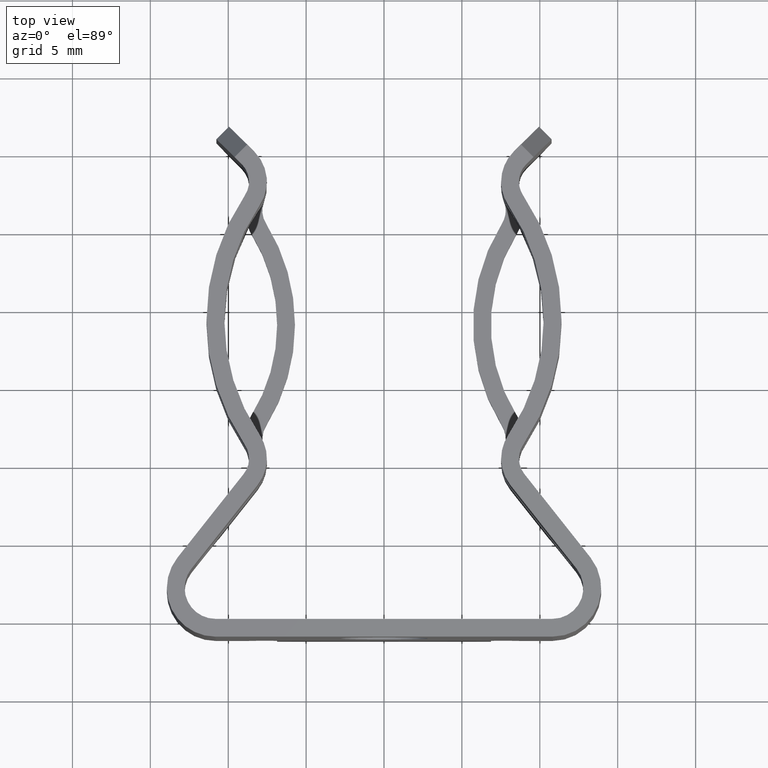
[diagram: clean part render]
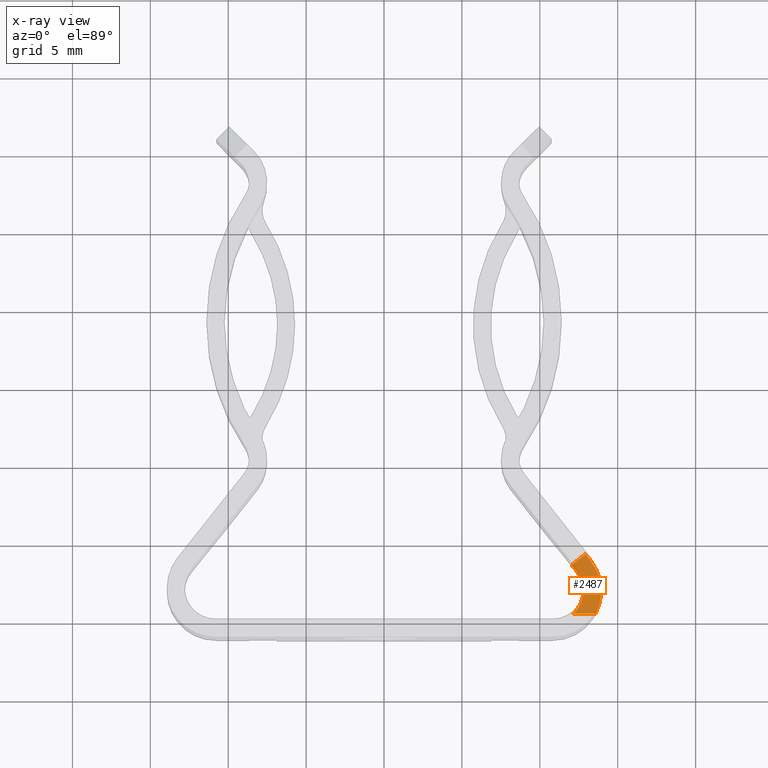
[diagram: x-ray — body ghosted, one internal face saturated and labeled with its STEP entity id]
A machine part, top view, then the same camera in x-ray: the body is ghosted and one INTERNAL B-rep face — a face not visible from any outside direction — is saturated and labeled: STEP entity #2487.
In plain terms, the highlighted planar face has unit normal (0, 0, -1).
Its self-contained STEP definition (entity closure, byte-faithful):
#44 = EDGE_CURVE ( 'NONE', #4025, #3288, #577, .T. ) ;
#83 = DIRECTION ( 'NONE',  ( 0.6204753079448082100, -0.7842259828842673700, -0.0000000000000000000 ) ) ;
#104 = EDGE_LOOP ( 'NONE', ( #1846, #1913, #1962, #2069, #2225, #2310 ) ) ;
#161 = EDGE_CURVE ( 'NONE', #3288, #3585, #166, .T. ) ;
#166 = LINE ( 'NONE', #1588, #222 ) ;
#222 = VECTOR ( 'NONE', #3735, 39.37007874015748900 ) ;
#577 = CIRCLE ( 'NONE', #4249, 0.07799999999999994400 ) ;
#665 = DIRECTION ( 'NONE',  ( 0.0000000000000000000, 1.000000000000000000, 0.0000000000000000000 ) ) ;
#730 = LINE ( 'NONE', #996, #1907 ) ;
#760 = VERTEX_POINT ( 'NONE', #4052 ) ;
#806 = CARTESIAN_POINT ( 'NONE',  ( 0.4258192205926868400, 0.07799999999999997200, -0.3990000000000000200 ) ) ;
#866 = DIRECTION ( 'NONE',  ( 0.0000000000000000000, 1.288607544181256200E-016, -1.000000000000000000 ) ) ;
#996 = CARTESIAN_POINT ( 'NONE',  ( 0.5222790164874515600, 0.1543184628772113800, -0.3990000000000000200 ) ) ;
#1242 = AXIS2_PLACEMENT_3D ( 'NONE', #806, #866, #665 ) ;
#1285 = CARTESIAN_POINT ( 'NONE',  ( 0.5090806755638476200, 0.1709999999999999000, -0.3990000000000000200 ) ) ;
#1538 = VERTEX_POINT ( 'NONE', #4269 ) ;
#1588 = CARTESIAN_POINT ( 'NONE',  ( 0.4869888472576595600, 0.1263970740196950200, -0.3990000000000000200 ) ) ;
#1618 = CARTESIAN_POINT ( 'NONE',  ( 0.4737905063340555600, 0.1430786111424835500, -0.3990000000000000200 ) ) ;
#1791 = VECTOR ( 'NONE', #4139, 39.37007874015748900 ) ;
#1830 = CIRCLE ( 'NONE', #1242, 0.1229999999999998700 ) ;
#1846 = ORIENTED_EDGE ( 'NONE', *, *, #2425, .F. ) ;
#1907 = VECTOR ( 'NONE', #83, 39.37007874015748900 ) ;
#1913 = ORIENTED_EDGE ( 'NONE', *, *, #44, .T. ) ;
#1931 = EDGE_CURVE ( 'NONE', #3848, #1538, #730, .T. ) ;
#1962 = ORIENTED_EDGE ( 'NONE', *, *, #161, .T. ) ;
#2069 = ORIENTED_EDGE ( 'NONE', *, *, #2305, .T. ) ;
#2133 = DIRECTION ( 'NONE',  ( 0.0000000000000000000, 1.000000000000000000, 1.288607544181256200E-016 ) ) ;
#2143 = DIRECTION ( 'NONE',  ( 0.0000000000000000000, 1.288607544181256200E-016, -1.000000000000000000 ) ) ;
#2181 = LINE ( 'NONE', #2930, #3013 ) ;
#2225 = ORIENTED_EDGE ( 'NONE', *, *, #1931, .T. ) ;
#2251 = CARTESIAN_POINT ( 'NONE',  ( 0.4258192205926868400, 0.07799999999999997200, -0.3990000000000000200 ) ) ;
#2274 = PLANE ( 'NONE',  #2485 ) ;
#2305 = EDGE_CURVE ( 'NONE', #3585, #3848, #3810, .T. ) ;
#2310 = ORIENTED_EDGE ( 'NONE', *, *, #3866, .T. ) ;
#2425 = EDGE_CURVE ( 'NONE', #4025, #760, #2181, .T. ) ;
#2485 = AXIS2_PLACEMENT_3D ( 'NONE', #2251, #2143, #2133 ) ;
#2487 = ADVANCED_FACE ( 'NONE', ( #3637 ), #2274, .T. ) ;
#2930 = CARTESIAN_POINT ( 'NONE',  ( -0.6250000000000000000, 0.02000000000000005900, -0.3990000000000000200 ) ) ;
#2974 = DIRECTION ( 'NONE',  ( 1.000000000000000000, 0.0000000000000000000, 0.0000000000000000000 ) ) ;
#3013 = VECTOR ( 'NONE', #2974, 39.37007874015748100 ) ;
#3288 = VERTEX_POINT ( 'NONE', #3574 ) ;
#3574 = CARTESIAN_POINT ( 'NONE',  ( 0.4869888472576595600, 0.1263970740196950200, -0.3990000000000000200 ) ) ;
#3585 = VERTEX_POINT ( 'NONE', #1618 ) ;
#3607 = CARTESIAN_POINT ( 'NONE',  ( 0.4258192205926868400, 0.07799999999999997200, -0.3990000000000000200 ) ) ;
#3637 = FACE_OUTER_BOUND ( 'NONE', #104, .T. ) ;
#3735 = DIRECTION ( 'NONE',  ( -0.6204753079448082100, 0.7842259828842673700, 0.0000000000000000000 ) ) ;
#3810 = LINE ( 'NONE', #4148, #1791 ) ;
#3848 = VERTEX_POINT ( 'NONE', #1285 ) ;
#3866 = EDGE_CURVE ( 'NONE', #1538, #760, #1830, .T. ) ;
#3959 = DIRECTION ( 'NONE',  ( -0.0000000000000000000, -1.288607544181256200E-016, 1.000000000000000000 ) ) ;
#4025 = VERTEX_POINT ( 'NONE', #4103 ) ;
#4052 = CARTESIAN_POINT ( 'NONE',  ( 0.5342858053089025700, 0.02000000000000005900, -0.3990000000000000200 ) ) ;
#4103 = CARTESIAN_POINT ( 'NONE',  ( 0.4779728398343080500, 0.02000000000000005900, -0.3990000000000000200 ) ) ;
#4139 = DIRECTION ( 'NONE',  ( 0.7842259828842673700, 0.6204753079448084300, -0.0000000000000000000 ) ) ;
#4148 = CARTESIAN_POINT ( 'NONE',  ( 0.5090806755638476200, 0.1709999999999999000, -0.3990000000000000200 ) ) ;
#4249 = AXIS2_PLACEMENT_3D ( 'NONE', #3607, #3959, #4302 ) ;
#4269 = CARTESIAN_POINT ( 'NONE',  ( 0.5222790164874515600, 0.1543184628772113800, -0.3990000000000000200 ) ) ;
#4302 = DIRECTION ( 'NONE',  ( 0.0000000000000000000, 1.000000000000000000, 0.0000000000000000000 ) ) ;